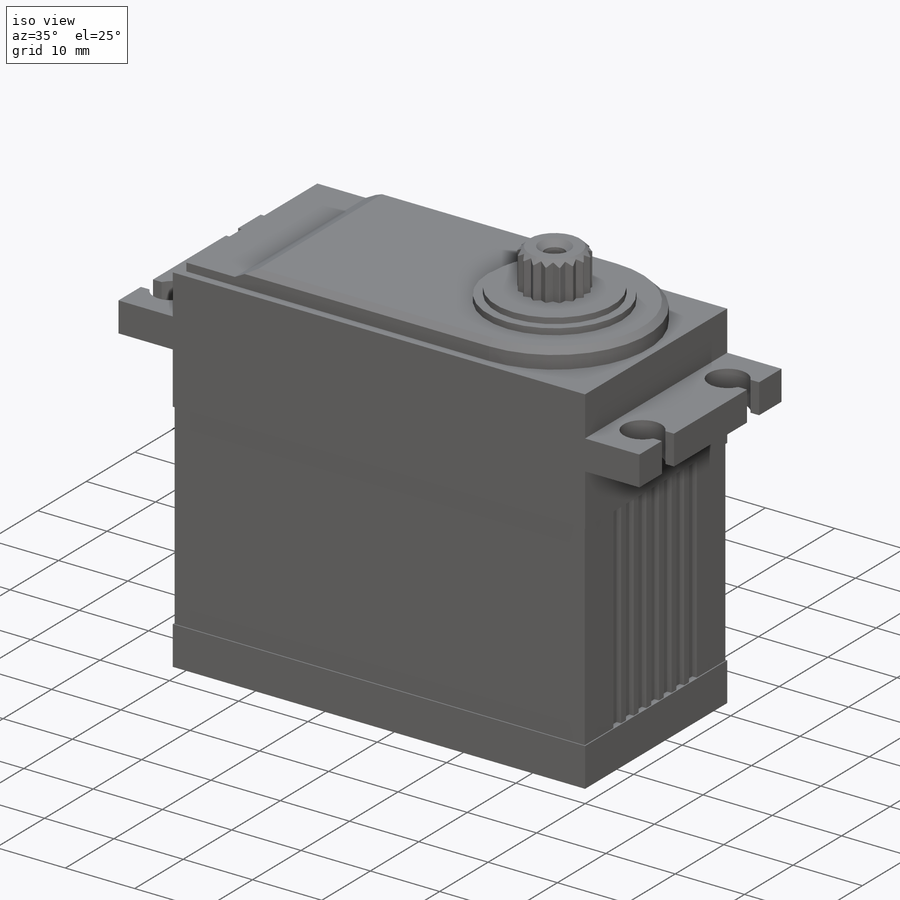
[diagram: iso view]
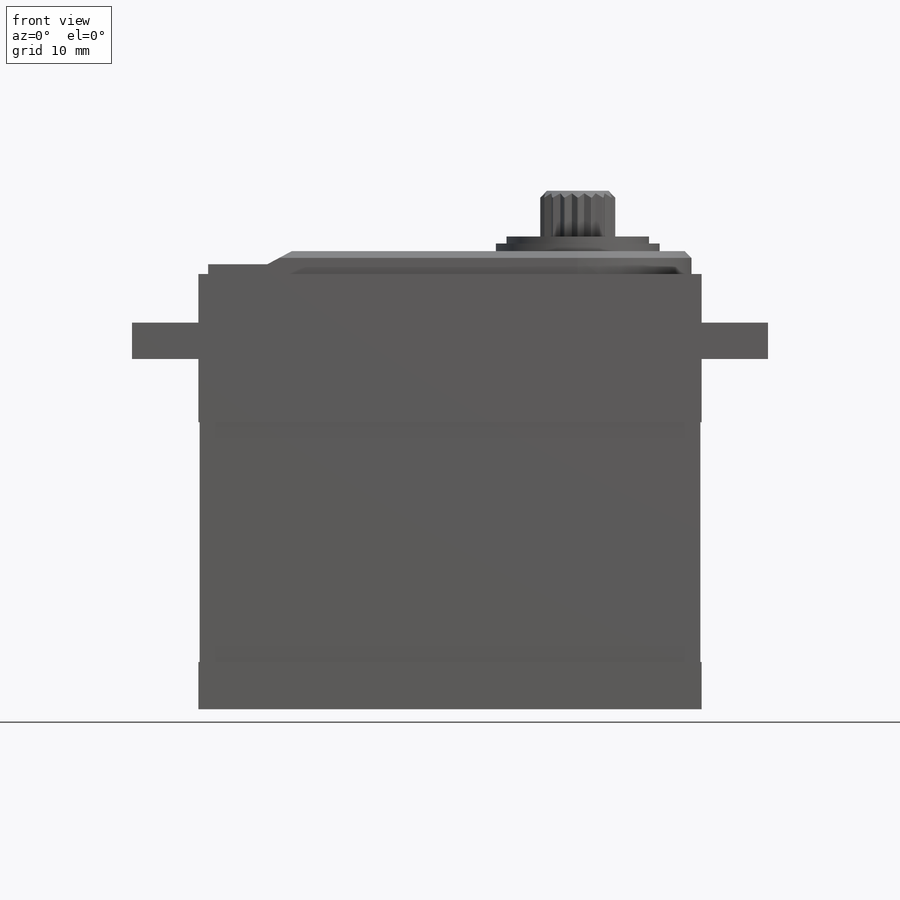
[diagram: front view]
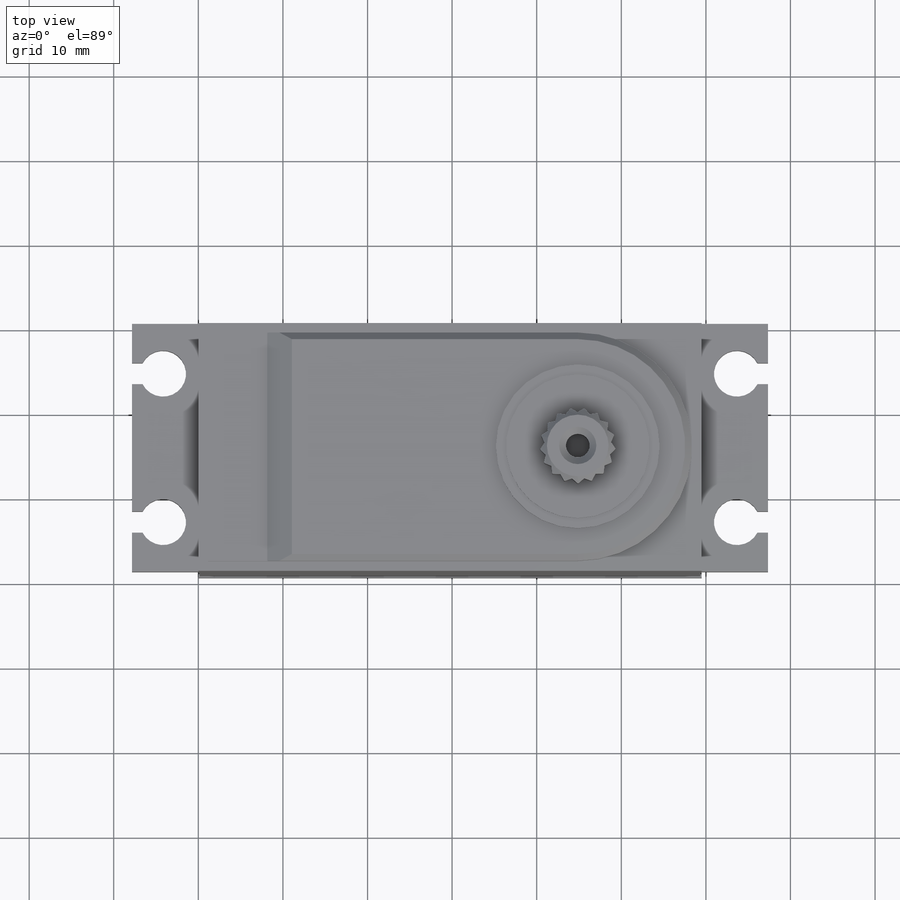
[diagram: top view]
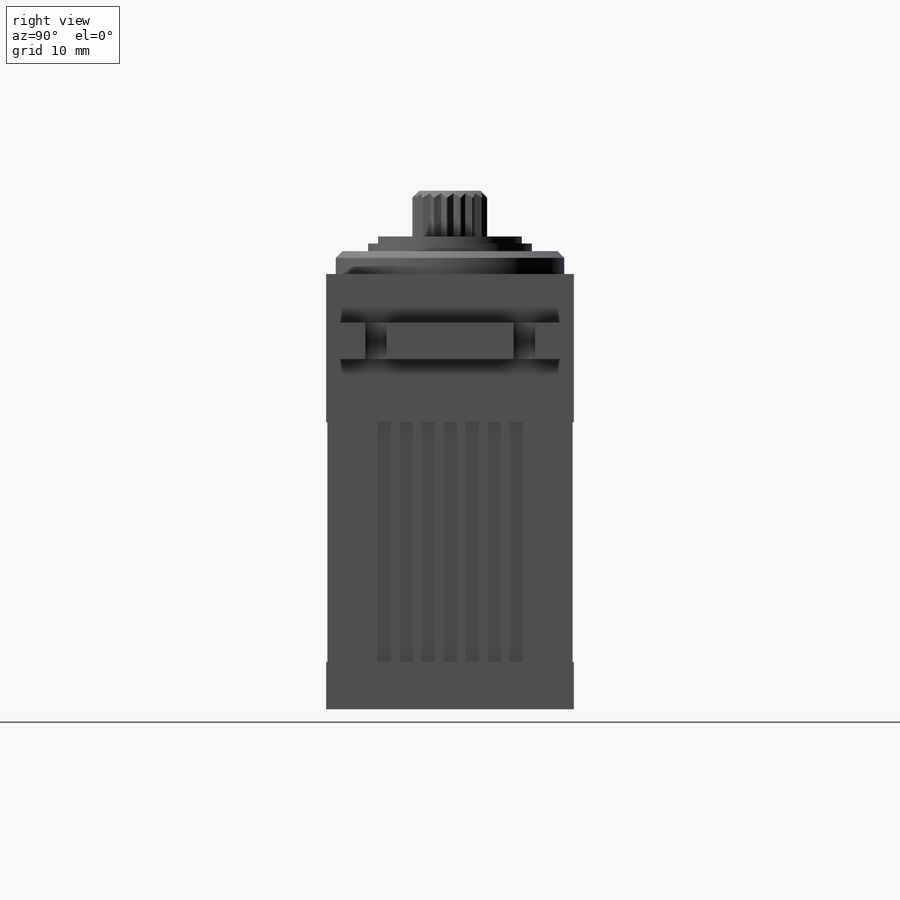
[diagram: right view]
SOLIDWORKS PART (.sldprt)
format: sldprt  version: not decoded by parser v0  size: 482,816 bytes
history: native  units: mm
features: sketch x10, extrude x6, cut_extrude x4, plane x3, chamfer x2, material x1, pattern_circular x1 (+9 scaffold rows collapsed)
feature tree (36):
  scaffold x9  (default folders/planes/origin — collapsed)
  material  "Material <sin especificar>"
  plane  "Alzado"
  plane  "Planta"
  plane  "Vista lateral"
  sketch  "Croquis1"  dims[D1=59.5mm D2=59.21mm D3=75.18mm D4=51.45mm D5=4.3mm D6=45.7mm D7=28.35mm D8=5.58mm]
  extrude  "Saliente-Extruir1"  Depth=29.3mm
  sketch  "Croquis2"  dims[D1=0.15mm D2=5.9mm D3=1.6mm D4=1.6mm D5=1.6mm D6=1.6mm D7=1.6mm D8=1.6mm D9=1.6mm D10=1.0mm D11=1.0mm D12=1.0mm D13=1.0mm D14=1.0mm D15=1.0mm D16=0.15mm D17=0.66mm D18=0.01mm D19=0.01mm]
  cut_extrude  "Cortar-Extruir1"  [1 undecoded]
  sketch  "Croquis3"  dims[D3=5.45mm D1=3.15mm D2=1.45mm D4=2.5mm]
  cut_extrude  "Cortar-Extruir2"  [1 undecoded]
  sketch  "Croquis4"  dims[D1=1.15mm D2=1.15mm D3=1.15mm D4=1.15mm]
  extrude  "Saliente-Extruir2"  Depth=1.15mm
  sketch  "Croquis5"  dims[D1=7.0mm]
  extrude  "Saliente-Extruir3"  Depth=1.56mm
  chamfer  "Chaflán1"  Distance=0.8mm Angle=45deg
  sketch  "Croquis6"
  cut_extrude  "Cortar-Extruir3"  [1 undecoded]
  sketch  "Croquis7"  dims[D1=19.36mm D2=2.2mm]
  extrude  "Saliente-Extruir4"  Depth=0.9mm
  sketch  "Croquis8"  dims[D1=16.98mm]
  extrude  "Saliente-Extruir5"  Depth=0.83mm
  sketch  "Croquis9"  dims[D1=8.89mm D2=2.8mm]
  extrude  "Saliente-Extruir6"  Depth=5.4mm
  chamfer  "Chaflán2"  Distance=0.8mm Angle=45deg
  sketch  "Croquis10"  dims[c1.D1=0.5mm c1.D2=~1.784761mm c2.D2=120.0deg c2.D3=~1.349292mm c3.D3=60.0deg]
  cut_extrude  "Cortar-Extruir4"  [1 undecoded]
  pattern_circular  "MatrizC1"  Count=17 Angle=21.176471deg
decode coverage: 18 of 23 modeling features carry decoded parameters
note: ~ marks probable driven/reference dimensions
note: 4 parameter values undecoded
summary: no parameter record found for 4 features
note: suppression state not decoded; provenance and decode notes live in map.json
